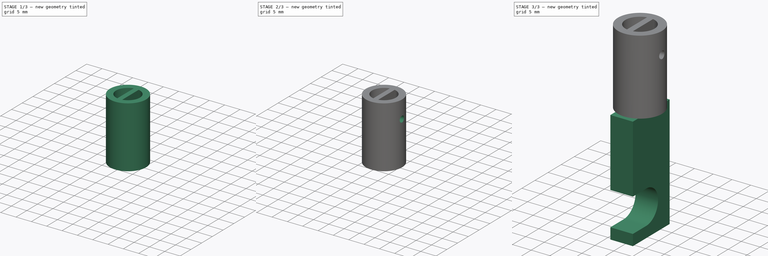
[diagram: build sequence overview — one tinted view per stage of 3, left to right]
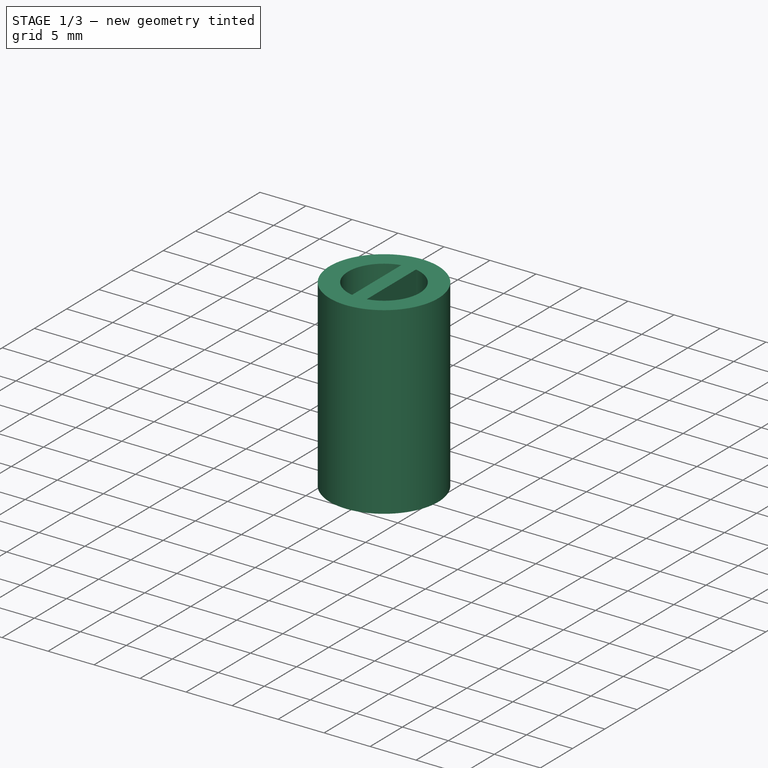
[diagram: stage 1 of 3 — iso view after this stage's code; geometry added in this stage tinted green]
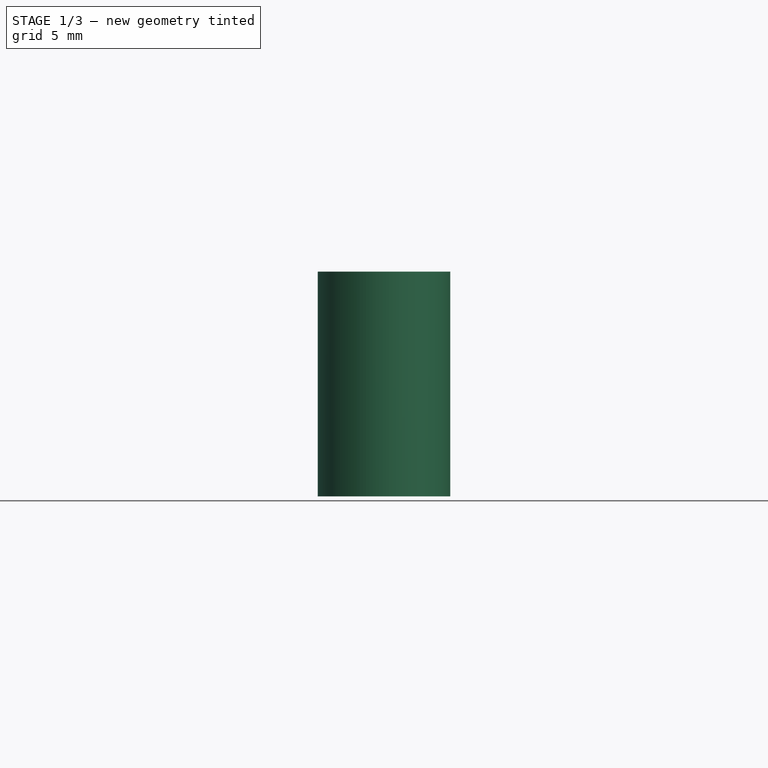
[diagram: stage 1 of 3 — front view after this stage's code; geometry added in this stage tinted green]
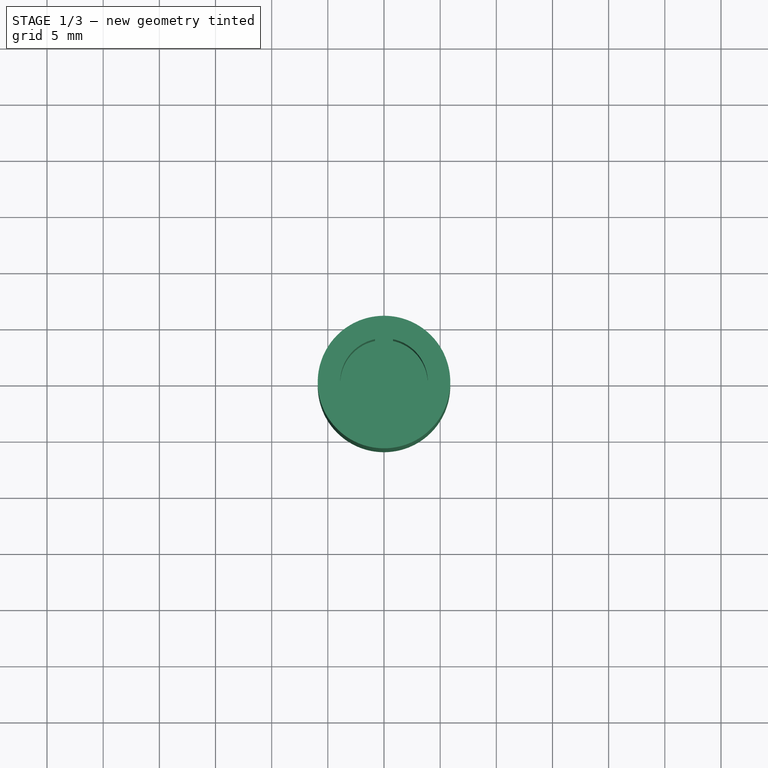
[diagram: stage 1 of 3 — top view after this stage's code; geometry added in this stage tinted green]
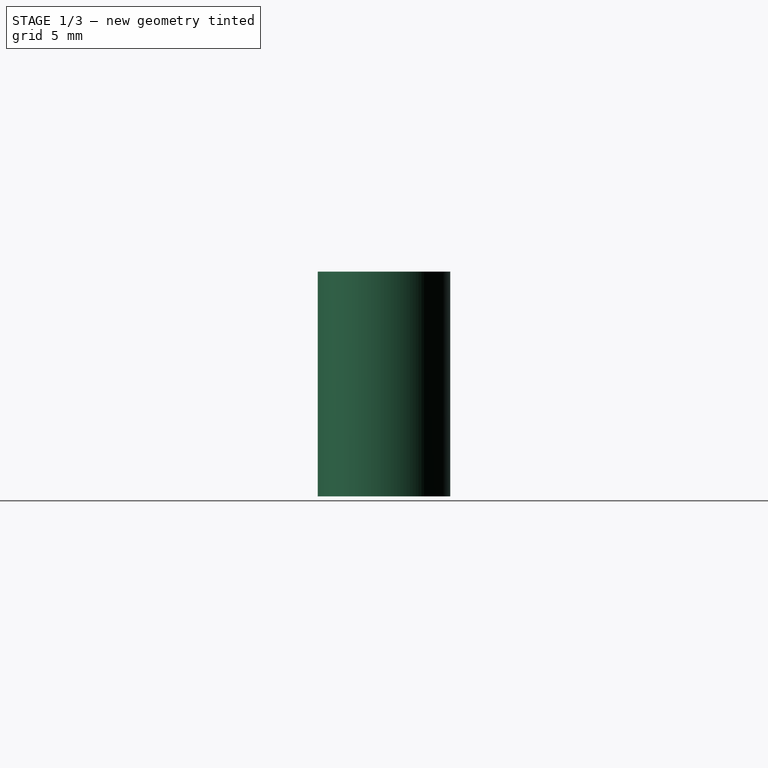
[diagram: stage 1 of 3 — right view after this stage's code; geometry added in this stage tinted green]
FCSTD DOCUMENT  (FreeCAD 0.15R4671 (Git))
Label: Solenoid Boot
License: All rights reserved
LicenseURL: http://en.wikipedia.org/wiki/All_rights_reserved
objects: Sketcher::SketchObject×6, PartDesign::Pocket×4, PartDesign::Pad×2
note: 18 computed .brp shape members not serialized (recipe doc carries the construction recipe); baked Part::Feature solids carry a one-line shape summary decoded from their .brp

FEATURE [Sketcher::SketchObject] Sketch
  sketch-geometry (1):
    g0: Circle CenterX=0 CenterY=0 CenterZ=0 NormalX=0 NormalY=0 NormalZ=1 Radius=5.9
  constraints (2):
    c: Coincident(g0,g-1)
    c: Radius(g0) = 5.9
FEATURE [PartDesign::Pad] Pad
  Length = 20
  Length2 = 100
  Sketch = -> Sketch
  Type = 0
FEATURE [Sketcher::SketchObject] Sketch001
  Placement = pos=(0,0,20) rot=(0,0,1;0rad)
  Support = -> Pad [Face3]
  sketch-geometry (5):
    g0: Circle [constr] CenterX=0 CenterY=0 CenterZ=0 NormalX=0 NormalY=0 NormalZ=1 Radius=3.9
    g1: LineSegment StartX=-0.8 StartY=3.81707 StartZ=0 EndX=-0.8 EndY=-3.81707 EndZ=0
    g2: LineSegment StartX=0.8 StartY=-3.81707 StartZ=0 EndX=0.8 EndY=3.81707 EndZ=0
    g3: ArcOfCircle CenterX=0 CenterY=0 CenterZ=0 NormalX=0 NormalY=0 NormalZ=1 Radius=3.9 StartAngle=1.77739 EndAngle=4.50579
    g4: ArcOfCircle CenterX=0 CenterY=0 CenterZ=0 NormalX=0 NormalY=0 NormalZ=1 Radius=3.9 StartAngle=4.91898 EndAngle=7.64739
  constraints (14):
    c: Coincident(g0,g-1)
    c: Radius(g0) = 3.9
    c: PointOnObject(g2,g0)
    c: PointOnObject(g1,g0)
    c: Vertical(g1)
    c: Vertical(g2)
    c: Coincident(g3,g-1)
    c: Coincident(g3,g1)
    c: Coincident(g3,g1)
    c: Coincident(g4,g-1)
    c: Coincident(g4,g2)
    c: Coincident(g4,g2)
    c: Symmetric(g1,g2,g-2)
    c: DistanceX(g2,g1) = -1.6
FEATURE [PartDesign::Pocket] Pocket
  Length = 9.3
  Sketch = -> Sketch001
  Type = 0
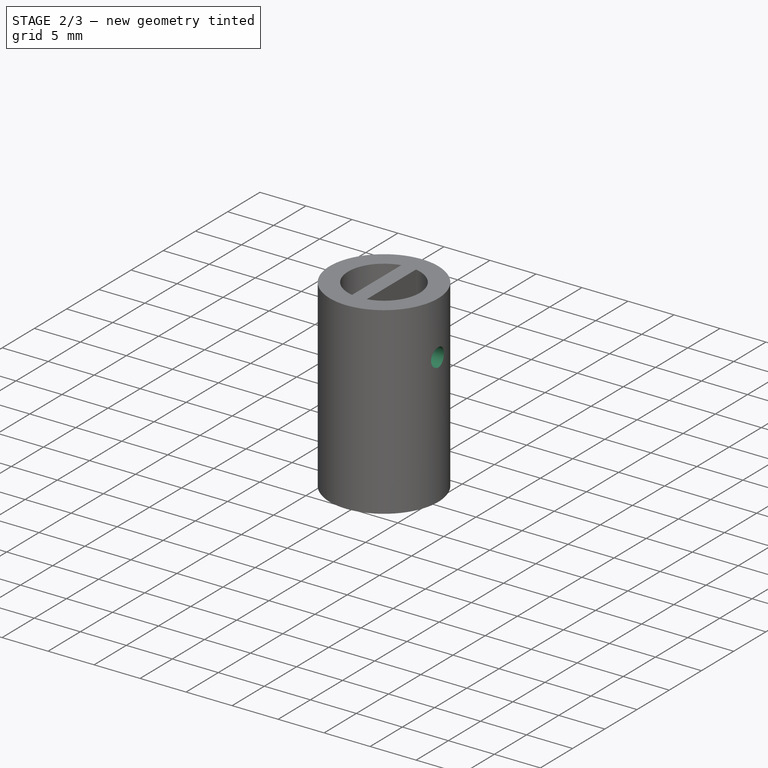
[diagram: stage 2 of 3 — iso view after this stage's code; geometry added in this stage tinted green]
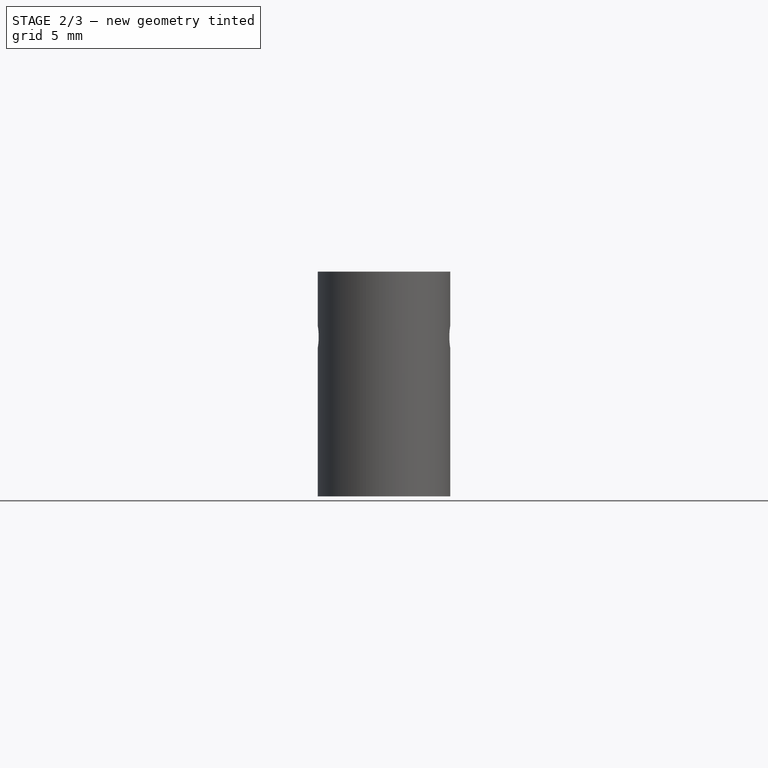
[diagram: stage 2 of 3 — front view after this stage's code; geometry added in this stage tinted green]
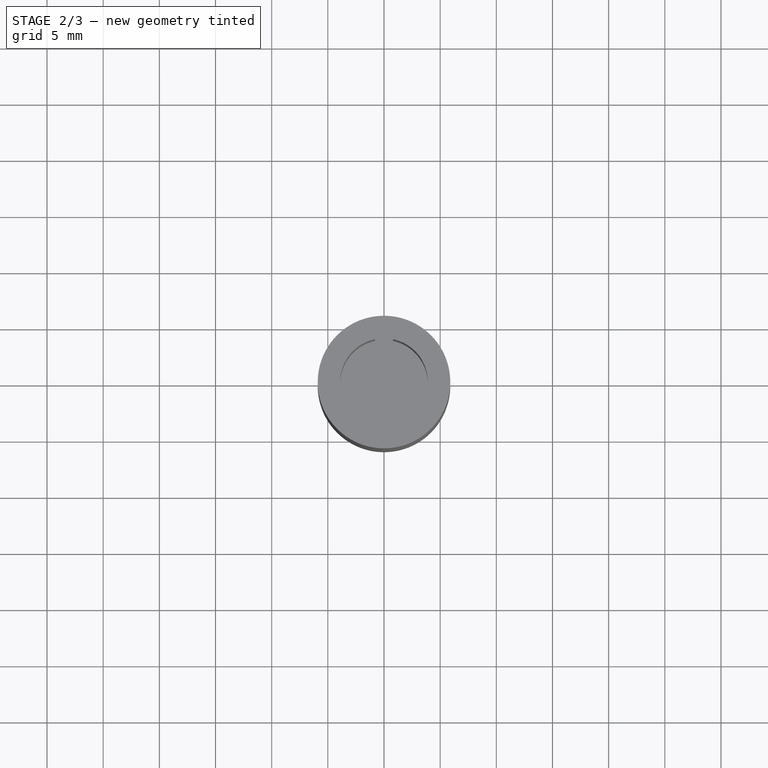
[diagram: stage 2 of 3 — top view after this stage's code; geometry added in this stage tinted green]
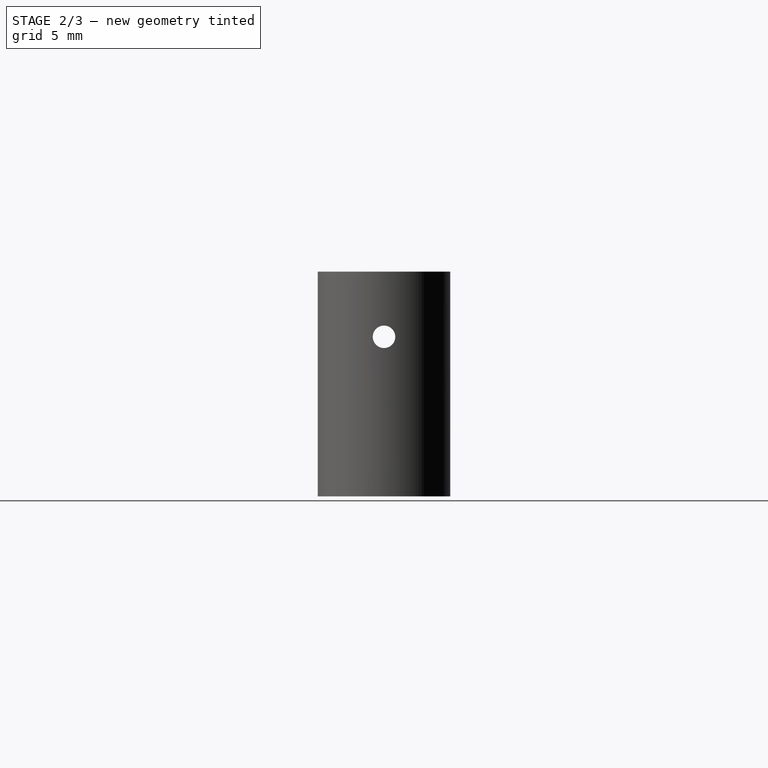
[diagram: stage 2 of 3 — right view after this stage's code; geometry added in this stage tinted green]
FEATURE [Sketcher::SketchObject] Sketch002
  ExternalGeometry = -> [Pocket]
  Placement = pos=(-0.8,0,0) rot=(0.57735,-0.57735,-0.57735;2.0944rad)
  Support = -> Pocket [Face6]
  sketch-geometry (1):
    g0: Circle CenterX=0 CenterY=14.2 CenterZ=0 NormalX=0 NormalY=0 NormalZ=1 Radius=1
  constraints (3):
    c: PointOnObject(g0,g-2)
    c: Radius(g0) = 1
    c: DistanceY(g0,g-3) = -3.5
FEATURE [PartDesign::Pocket] Pocket001
  Length = 5
  Sketch = -> Sketch002
  Type = 1
FEATURE [Sketcher::SketchObject] Sketch003
  ExternalGeometry = -> [Pocket001]
  Placement = pos=(0.8,0,0) rot=(0.57735,0.57735,0.57735;2.0944rad)
  Support = -> Pocket001 [Face6]
  sketch-geometry (1):
    g0: Circle CenterX=0 CenterY=14.2 CenterZ=0 NormalX=0 NormalY=0 NormalZ=1 Radius=1
  constraints (1):
    c: PointOnObject(g0,g-2)
FEATURE [PartDesign::Pocket] Pocket002
  Length = 5
  Sketch = -> Sketch003
  Type = 1
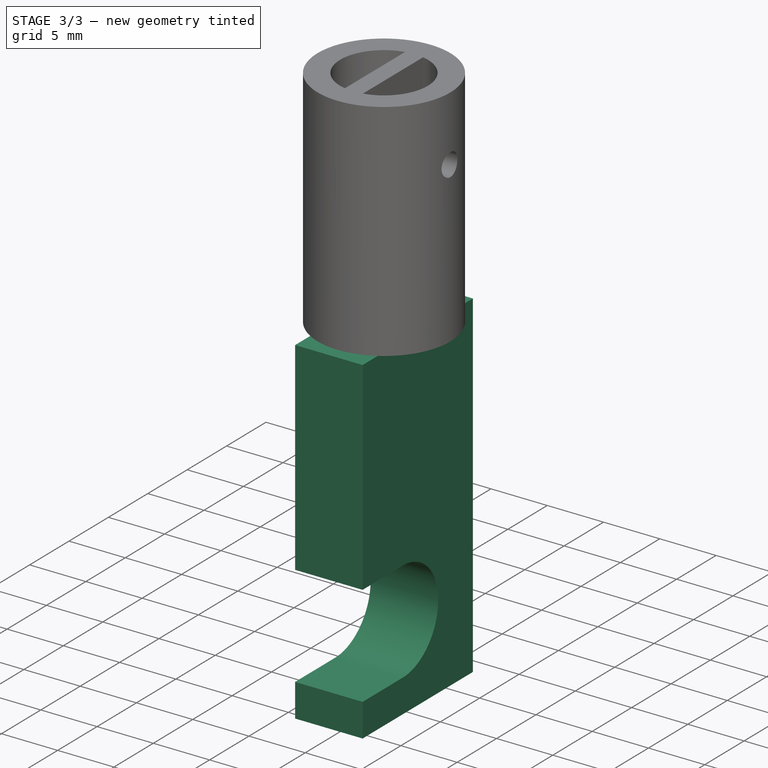
[diagram: stage 3 of 3 — iso view after this stage's code; geometry added in this stage tinted green]
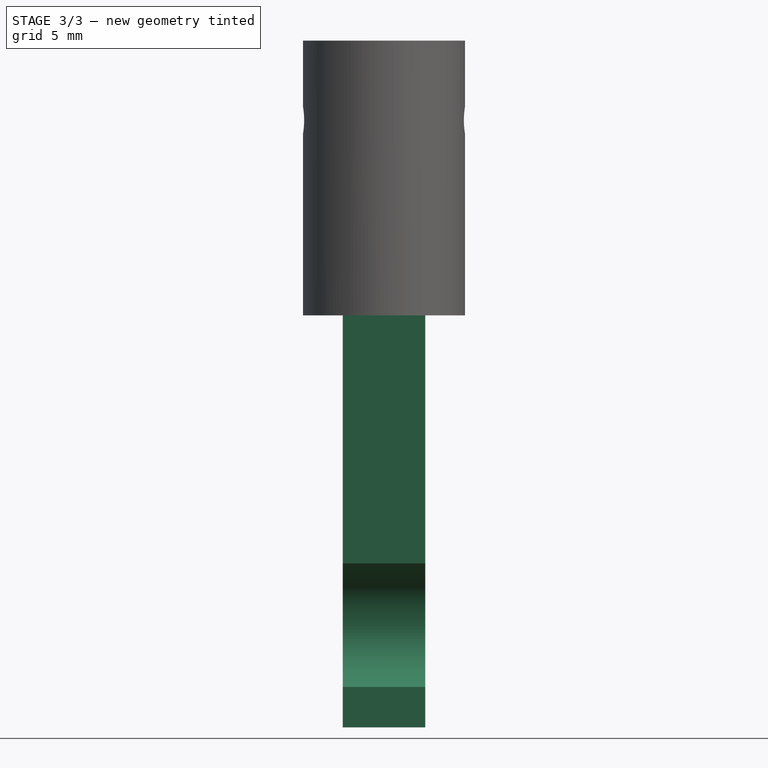
[diagram: stage 3 of 3 — front view after this stage's code; geometry added in this stage tinted green]
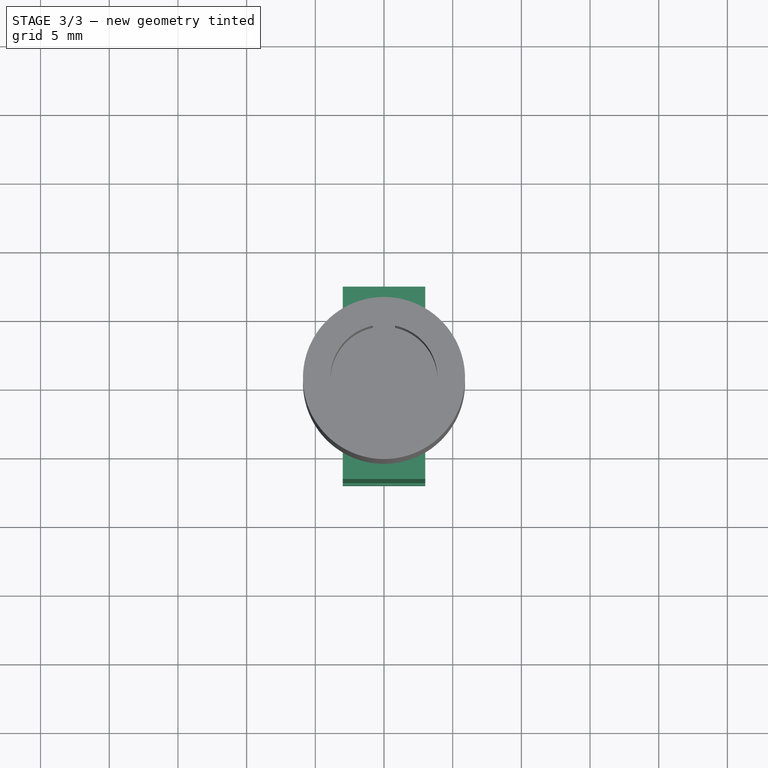
[diagram: stage 3 of 3 — top view after this stage's code; geometry added in this stage tinted green]
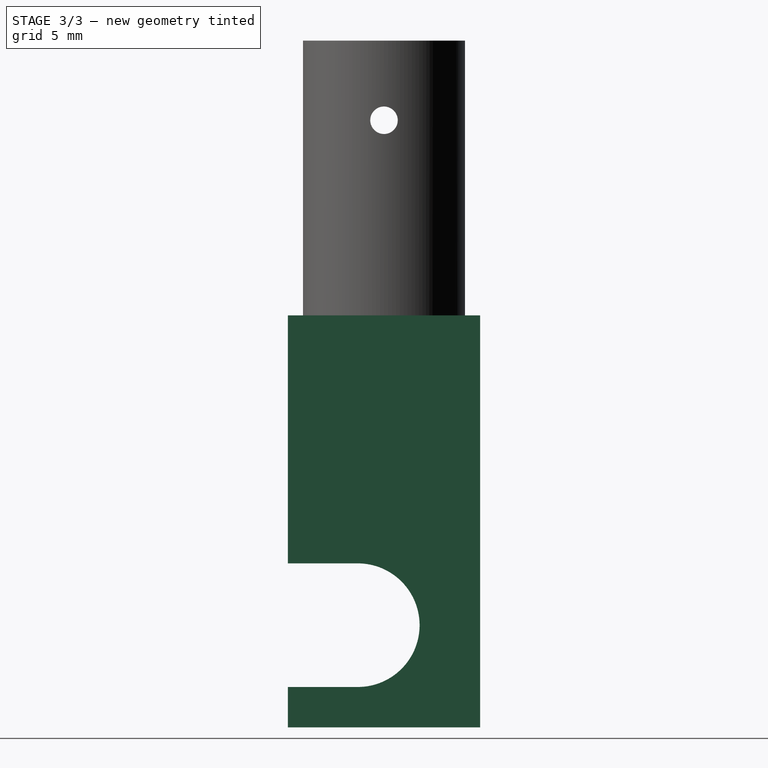
[diagram: stage 3 of 3 — right view after this stage's code; geometry added in this stage tinted green]
FEATURE [Sketcher::SketchObject] Sketch004
  Placement = pos=(0,0,0) rot=(1,0,0;3.14159rad)
  Support = -> Pocket002 [Face4]
  sketch-geometry (4):
    g0: LineSegment StartX=3 StartY=-7 StartZ=0 EndX=3 EndY=7 EndZ=0
    g1: LineSegment StartX=3 StartY=7 StartZ=0 EndX=-3 EndY=7 EndZ=0
    g2: LineSegment StartX=-3 StartY=7 StartZ=0 EndX=-3 EndY=-7 EndZ=0
    g3: LineSegment StartX=-3 StartY=-7 StartZ=0 EndX=3 EndY=-7 EndZ=0
  constraints (13):
    c: Coincident(g0,g1)
    c: Coincident(g1,g2)
    c: Coincident(g2,g3)
    c: Coincident(g3,g0)
    c: Coincident(g1,g-1)
    c: Horizontal(g1)
    c: DistanceX(g1) = -6
    c: Vertical(g0)
    c: DistanceY(g0) = 14
    c: Equal(g2,g0)
    c: Equal(g1,g3)
    c: Symmetric(g1,g0,g-2)
    c: Symmetric(g0,g0,g-1)
FEATURE [PartDesign::Pad] Pad001
  Length = 30
  Length2 = 100
  Sketch = -> Sketch004
  Type = 0
FEATURE [Sketcher::SketchObject] Sketch005
  ExternalGeometry = -> [Pad001]
  Placement = pos=(3,0,0) rot=(0.57735,0.57735,0.57735;2.0944rad)
  Support = -> Pad001 [Face16]
  sketch-geometry (8):
    g0: LineSegment StartX=-1.81556 StartY=-18.0577 StartZ=0 EndX=-7.1 EndY=-18.0577 EndZ=0
    g1: LineSegment StartX=-7.1 StartY=-18.0577 StartZ=0 EndX=-7.1 EndY=-27.0577 EndZ=0
    g2: LineSegment StartX=-7.1 StartY=-27.0577 StartZ=0 EndX=-1.81556 EndY=-27.0577 EndZ=0
    g3: LineSegment [constr] StartX=-1.81556 StartY=-18.0577 StartZ=0 EndX=-1.81556 EndY=-22.5577 EndZ=0
    g4: LineSegment [constr] StartX=-1.81556 StartY=-22.5577 StartZ=0 EndX=-1.81556 EndY=-27.0577 EndZ=0
    g5: ArcOfCircle CenterX=-1.81556 CenterY=-22.5577 CenterZ=0 NormalX=0 NormalY=0 NormalZ=1 Radius=4.5 StartAngle=4.71239 EndAngle=7.85398
    g6: LineSegment StartX=-1.81556 StartY=-22.5577 StartZ=0 EndX=-1.81556 EndY=-0.10639 EndZ=0
    g7: LineSegment StartX=-1.81556 StartY=-22.5577 StartZ=0 EndX=0 EndY=-22.5577 EndZ=0
  constraints (21):
    c: Coincident(g3,g0)
    c: Vertical(g3)
    c: Coincident(g4,g2)
    c: Vertical(g4)
    c: Equal(g4,g3)
    c: Coincident(g3,g4)
    c: Horizontal(g0)
    c: Horizontal(g2)
    c: Vertical(g1)
    c: Coincident(g5,g3)
    c: Coincident(g5,g0)
    c: Coincident(g5,g2)
    c: Coincident(g1,g2)
    c: Coincident(g0,g1)
    c: DistanceX(g-1,g1) = -7.1
    c: DistanceY(g0,g2) = -9
    c: Coincident(g6,g3)
    c: Vertical(g6)
    c: Coincident(g7,g3)
    c: PointOnObject(g7,g-2)
    c: Horizontal(g7)
FEATURE [PartDesign::Pocket] Pocket003
  Length = 5
  Sketch = -> Sketch005
  Type = 1
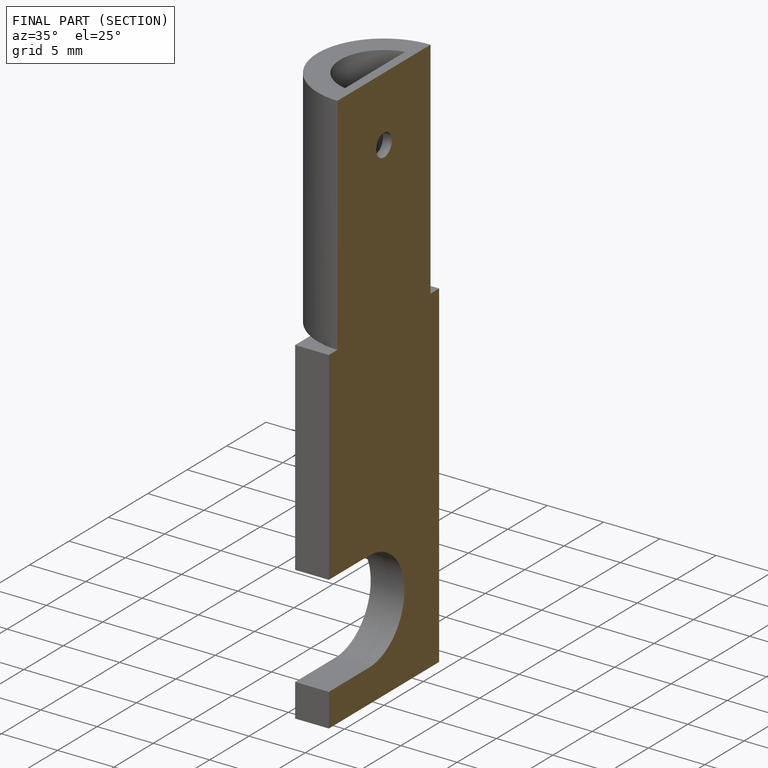
[diagram: finished part — half-section view (interior)]
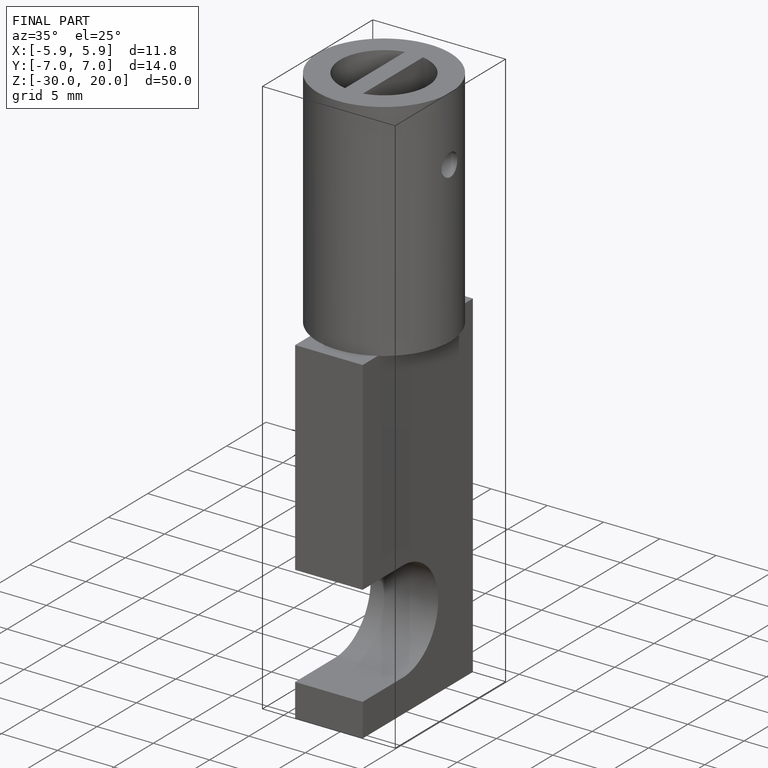
[diagram: finished part — iso view with bounding-box wireframe]
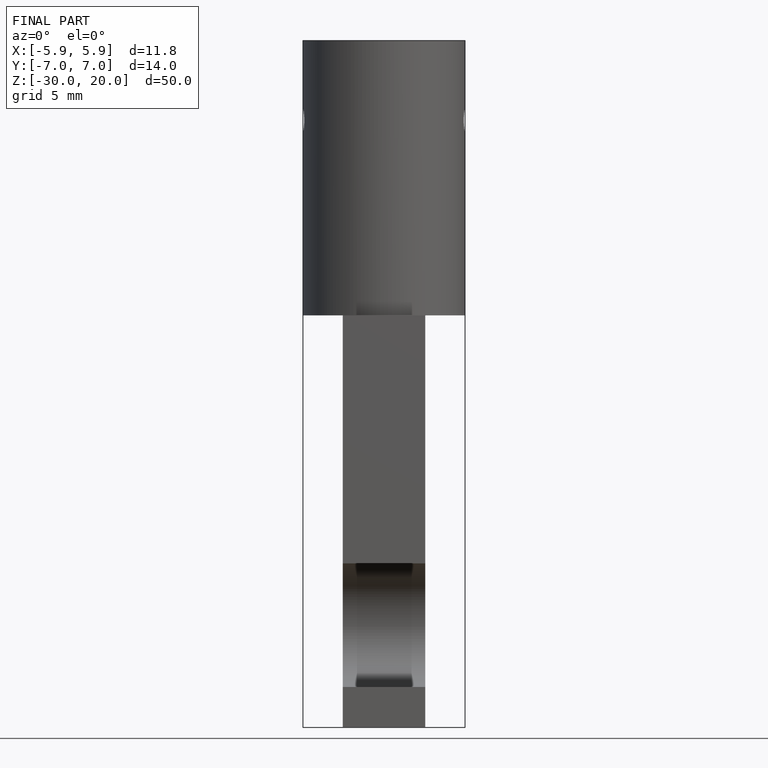
[diagram: finished part — front view with bounding-box wireframe]
